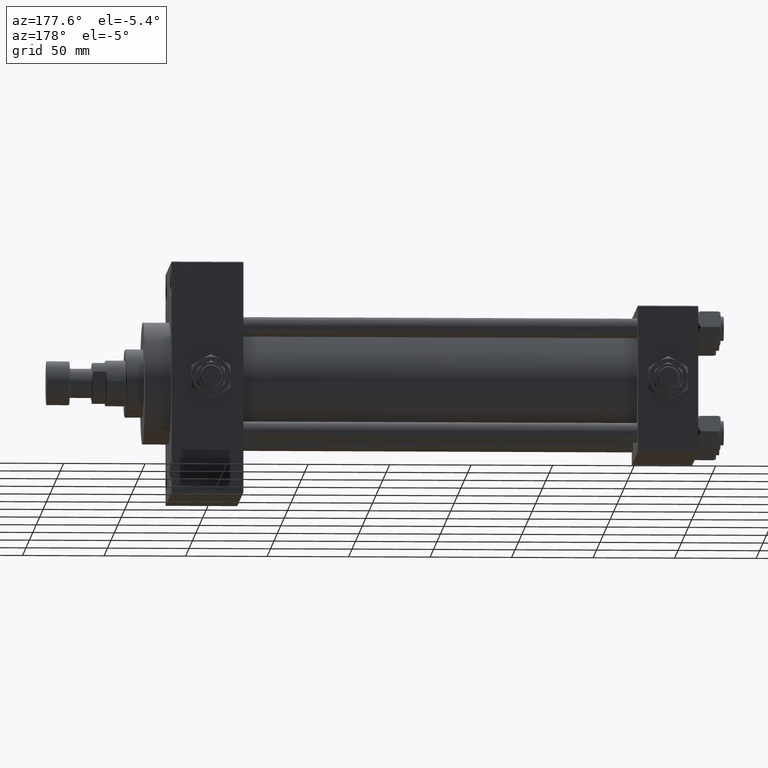
[diagram: clean part render]
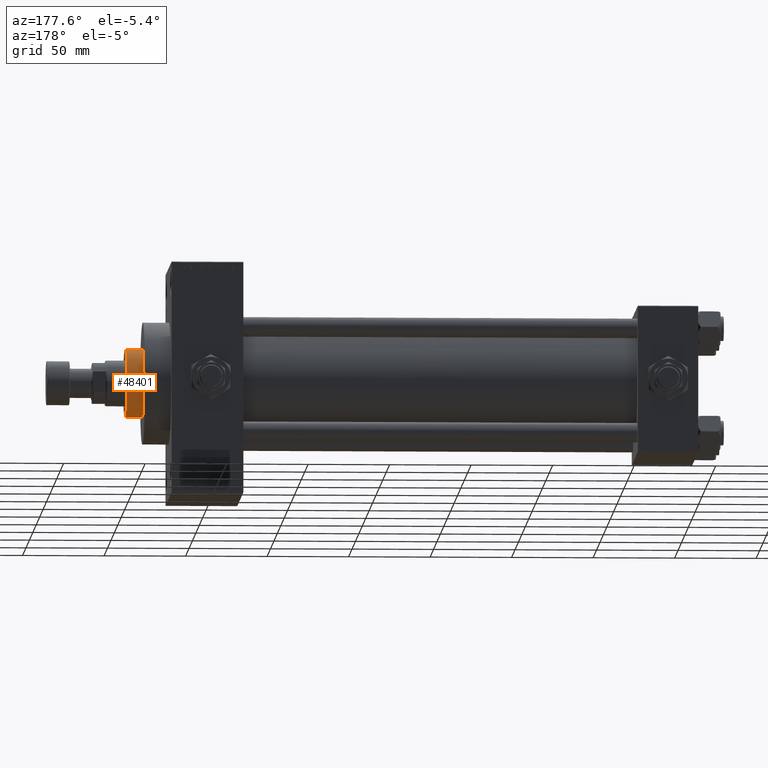
[diagram: same view with one face highlighted and labeled with its STEP entity id]
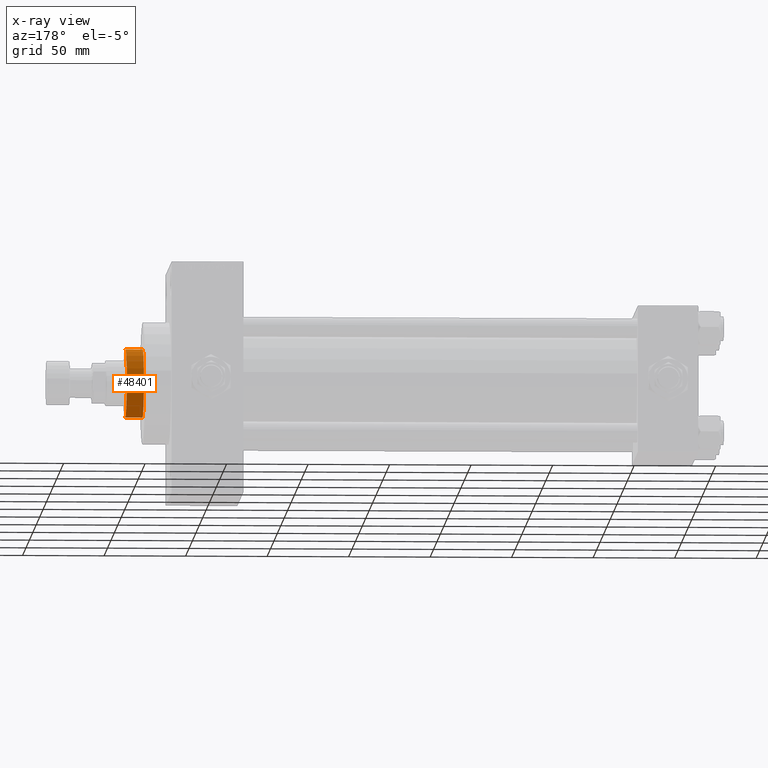
[diagram: x-ray of the same camera — body ghosted, the highlighted face saturated]
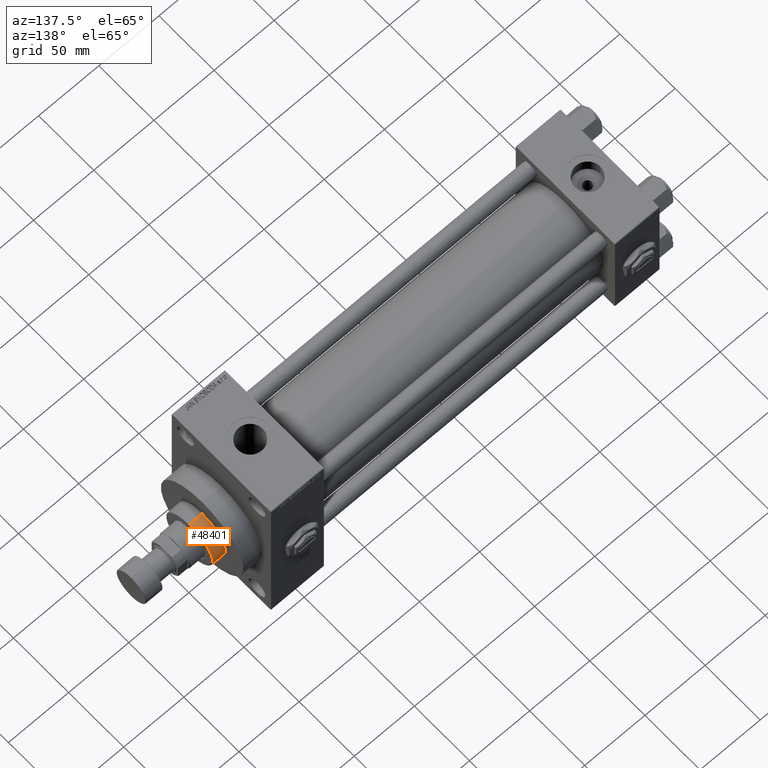
[diagram: same view with one face highlighted and labeled with its STEP entity id]
A machine part, auxiliary view. The second image highlights one B-rep face of the part: STEP entity #48401.
The next image is the same camera in x-ray: the body ghosted, the highlighted face saturated — about 0% of this face is hidden behind the body in this view.
A second angle (auxiliary view) of the same face is appended — the face is thin or edge-on in the first view.
In plain terms, the highlighted cylindrical surface (edge-blend (fillet) strip) has radius 21 mm, axis along (-1, 0, 0).
Its self-contained STEP definition (entity closure, byte-faithful):
#997 = ORIENTED_EDGE ( 'NONE', *, *, #26750, .F. ) ;
#1836 = CARTESIAN_POINT ( 'NONE',  ( 21.00000000000000000, 2.571758278209441661E-15, 43.25999999999999801 ) ) ;
#2284 = VECTOR ( 'NONE', #12750, 1000.000000000000000 ) ;
#2713 = VECTOR ( 'NONE', #41008, 1000.000000000000000 ) ;
#4666 = EDGE_CURVE ( 'NONE', #20422, #21406, #30692, .T. ) ;
#5188 = CARTESIAN_POINT ( 'NONE',  ( 21.00000000000000000, 2.571758278209441661E-15, 54.26000000000000512 ) ) ;
#8372 = CARTESIAN_POINT ( 'NONE',  ( 0.000000000000000000, 0.000000000000000000, 53.76000000000001933 ) ) ;
#8712 = CARTESIAN_POINT ( 'NONE',  ( 0.000000000000000000, 0.000000000000000000, 43.25999999999999801 ) ) ;
#9459 = LINE ( 'NONE', #5188, #2284 ) ;
#12750 = DIRECTION ( 'NONE',  ( -0.000000000000000000, -0.000000000000000000, -1.000000000000000000 ) ) ;
#13072 = ORIENTED_EDGE ( 'NONE', *, *, #28053, .T. ) ;
#14532 = AXIS2_PLACEMENT_3D ( 'NONE', #8372, #39071, #30766 ) ;
#15534 = EDGE_LOOP ( 'NONE', ( #997, #13072, #25347, #23603 ) ) ;
#16281 = FACE_OUTER_BOUND ( 'NONE', #15534, .T. ) ;
#17032 = CARTESIAN_POINT ( 'NONE',  ( -21.00000000000000000, 0.000000000000000000, 53.76000000000001933 ) ) ;
#20422 = VERTEX_POINT ( 'NONE', #44207 ) ;
#21406 = VERTEX_POINT ( 'NONE', #1836 ) ;
#23350 = DIRECTION ( 'NONE',  ( -1.000000000000000000, 0.000000000000000000, 0.000000000000000000 ) ) ;
#23603 = ORIENTED_EDGE ( 'NONE', *, *, #4666, .T. ) ;
#23833 = DIRECTION ( 'NONE',  ( 0.000000000000000000, 0.000000000000000000, 1.000000000000000000 ) ) ;
#25347 = ORIENTED_EDGE ( 'NONE', *, *, #35655, .T. ) ;
#25672 = CARTESIAN_POINT ( 'NONE',  ( -21.00000000000000000, 0.000000000000000000, 54.26000000000000512 ) ) ;
#26750 = EDGE_CURVE ( 'NONE', #32026, #21406, #9459, .T. ) ;
#28053 = EDGE_CURVE ( 'NONE', #32026, #33821, #35382, .T. ) ;
#29689 = LINE ( 'NONE', #25672, #2713 ) ;
#30692 = CIRCLE ( 'NONE', #49171, 21.00000000000000000 ) ;
#30766 = DIRECTION ( 'NONE',  ( 1.000000000000000000, 0.000000000000000000, 0.000000000000000000 ) ) ;
#30871 = DIRECTION ( 'NONE',  ( 1.000000000000000000, 0.000000000000000000, 0.000000000000000000 ) ) ;
#31136 = CARTESIAN_POINT ( 'NONE',  ( 0.000000000000000000, 0.000000000000000000, 54.26000000000000512 ) ) ;
#32026 = VERTEX_POINT ( 'NONE', #33529 ) ;
#33529 = CARTESIAN_POINT ( 'NONE',  ( 21.00000000000000000, 2.571758278209441661E-15, 53.76000000000001933 ) ) ;
#33821 = VERTEX_POINT ( 'NONE', #17032 ) ;
#34904 = CYLINDRICAL_SURFACE ( 'NONE', #42425, 21.00000000000000000 ) ;
#35382 = CIRCLE ( 'NONE', #14532, 21.00000000000000000 ) ;
#35655 = EDGE_CURVE ( 'NONE', #33821, #20422, #29689, .T. ) ;
#39071 = DIRECTION ( 'NONE',  ( 0.000000000000000000, 0.000000000000000000, -1.000000000000000000 ) ) ;
#41008 = DIRECTION ( 'NONE',  ( -0.000000000000000000, -0.000000000000000000, -1.000000000000000000 ) ) ;
#42425 = AXIS2_PLACEMENT_3D ( 'NONE', #31136, #42461, #23350 ) ;
#42461 = DIRECTION ( 'NONE',  ( -0.000000000000000000, -0.000000000000000000, -1.000000000000000000 ) ) ;
#44207 = CARTESIAN_POINT ( 'NONE',  ( -21.00000000000000000, 0.000000000000000000, 43.25999999999999801 ) ) ;
#48401 = ADVANCED_FACE ( 'NONE', ( #16281 ), #34904, .T. ) ;
#49171 = AXIS2_PLACEMENT_3D ( 'NONE', #8712, #23833, #30871 ) ;